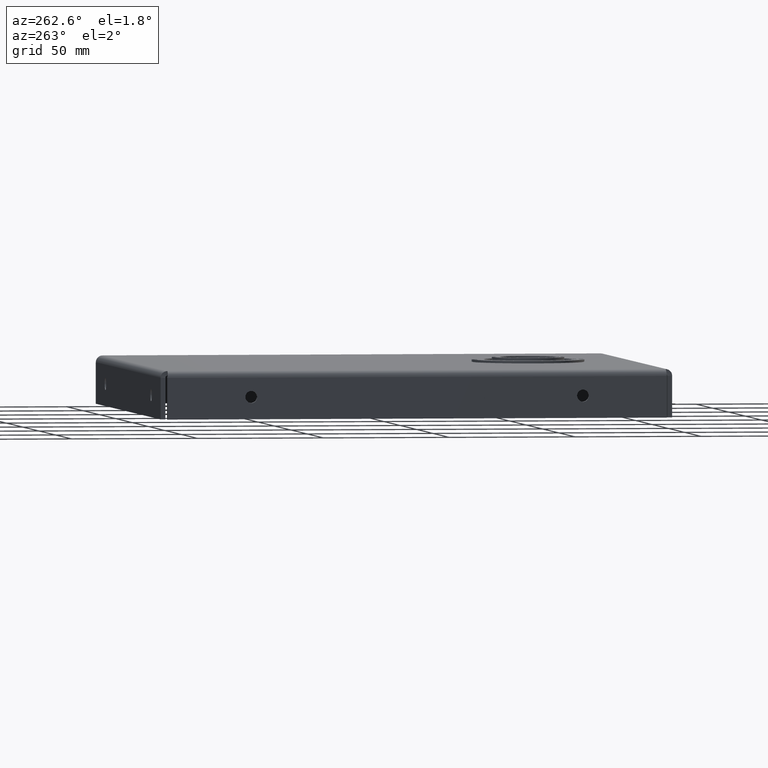
[diagram: clean part render]
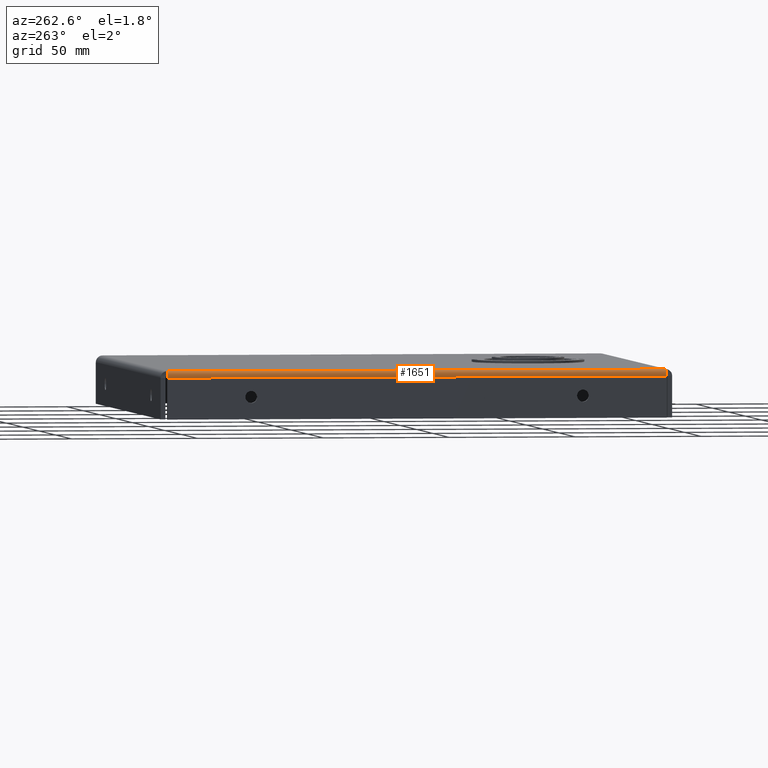
[diagram: same view with one face highlighted and labeled with its STEP entity id]
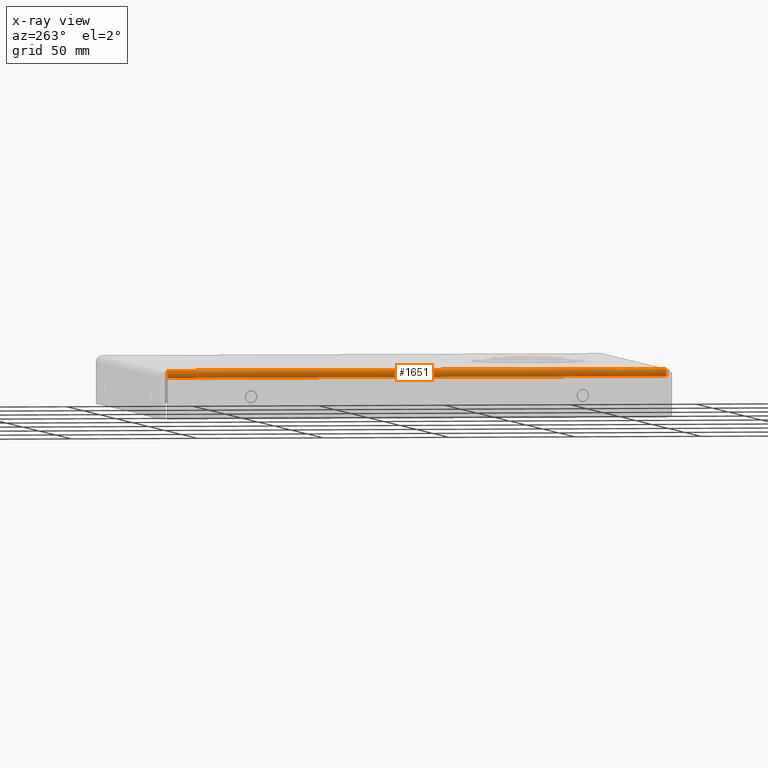
[diagram: x-ray of the same camera — body ghosted, the highlighted face saturated]
A machine part, auxiliary view. The second image highlights one B-rep face of the part: STEP entity #1651.
The next image is the same camera in x-ray: the body ghosted, the highlighted face saturated — about 0% of this face is hidden behind the body in this view.
In plain terms, the highlighted cylindrical surface (edge-blend (fillet) strip) has radius 2.6733 mm, axis along (0, -1, 0).
Its self-contained STEP definition (entity closure, byte-faithful):
#29=B_SPLINE_CURVE_WITH_KNOTS('',3,(#2577,#2578,#2579,#2580,#2581,#2582,
#2583),.UNSPECIFIED.,.F.,.F.,(4,3,4),(0.,0.897597901025654,1.57079632679489),
 .UNSPECIFIED.);
#30=B_SPLINE_CURVE_WITH_KNOTS('',3,(#2605,#2606,#2607,#2608,#2609,#2610,
#2611),.UNSPECIFIED.,.F.,.F.,(4,3,4),(0.,0.673198425769241,1.57079632679489),
 .UNSPECIFIED.);
#115=CYLINDRICAL_SURFACE('',#1769,0.10525);
#171=FACE_OUTER_BOUND('',#283,.T.);
#283=EDGE_LOOP('',(#1242,#1243,#1244,#1245));
#437=LINE('',#2537,#608);
#449=LINE('',#2621,#620);
#608=VECTOR('',#2000,7.80780582617584);
#620=VECTOR('',#2030,7.7895);
#767=VERTEX_POINT('',#2466);
#774=VERTEX_POINT('',#2535);
#775=VERTEX_POINT('',#2536);
#782=VERTEX_POINT('',#2576);
#939=EDGE_CURVE('',#774,#775,#437,.T.);
#950=EDGE_CURVE('',#782,#774,#29,.T.);
#952=EDGE_CURVE('',#775,#767,#30,.T.);
#957=EDGE_CURVE('',#767,#782,#449,.T.);
#1242=ORIENTED_EDGE('',*,*,#939,.F.);
#1243=ORIENTED_EDGE('',*,*,#950,.F.);
#1244=ORIENTED_EDGE('',*,*,#957,.F.);
#1245=ORIENTED_EDGE('',*,*,#952,.F.);
#1651=ADVANCED_FACE('',(#171),#115,.T.);
#1769=AXIS2_PLACEMENT_3D('',#2620,#2028,#2029);
#2000=DIRECTION('',(-1.73902928989991E-16,1.,-5.04177991450963E-33));
#2028=DIRECTION('center_axis',(1.74838271594513E-16,-1.,0.));
#2029=DIRECTION('ref_axis',(0.,0.,1.));
#2030=DIRECTION('',(1.7956302365442E-16,-1.,0.));
#2466=CARTESIAN_POINT('',(-3.89475,3.89475,0.074));
#2535=CARTESIAN_POINT('',(-4.,-3.90390291308792,-0.0312499999999995));
#2536=CARTESIAN_POINT('',(-4.,3.90390291308792,-0.0312499999999995));
#2537=CARTESIAN_POINT('',(-4.,5.67259492981161E-17,-0.0312499999999989));
#2576=CARTESIAN_POINT('',(-3.89475,-3.89475,0.074));
#2577=CARTESIAN_POINT('Ctrl Pts',(-3.89475,-3.89475,0.074));
#2578=CARTESIAN_POINT('Ctrl Pts',(-3.92624072636098,-3.89649341201675,0.074));
#2579=CARTESIAN_POINT('Ctrl Pts',(-3.95737896479609,-3.89823682403349,0.0588832058814389));
#2580=CARTESIAN_POINT('Ctrl Pts',(-3.97701530579973,-3.89998023605024,0.0343874155786176));
#2581=CARTESIAN_POINT('Ctrl Pts',(-3.99174256155247,-3.9012877950628,0.0160155728515016));
#2582=CARTESIAN_POINT('Ctrl Pts',(-4.,-3.90259535407536,-0.00763195522926074));
#2583=CARTESIAN_POINT('Ctrl Pts',(-4.,-3.90390291308792,-0.0312499999999982));
#2605=CARTESIAN_POINT('Ctrl Pts',(-4.,3.90390291308792,-0.0312499999999997));
#2606=CARTESIAN_POINT('Ctrl Pts',(-4.,3.90259535407536,-0.00763195522926199));
#2607=CARTESIAN_POINT('Ctrl Pts',(-3.99174256155247,3.9012877950628,0.0160155728515005));
#2608=CARTESIAN_POINT('Ctrl Pts',(-3.97701530579974,3.89998023605024,0.0343874155786169));
#2609=CARTESIAN_POINT('Ctrl Pts',(-3.95737896479609,3.89823682403349,0.0588832058814386));
#2610=CARTESIAN_POINT('Ctrl Pts',(-3.92624072636098,3.89649341201675,0.0740000000000004));
#2611=CARTESIAN_POINT('Ctrl Pts',(-3.89475,3.89475,0.074));
#2620=CARTESIAN_POINT('Origin',(-3.89475,0.,-0.0312500000000003));
#2621=CARTESIAN_POINT('',(-3.89475,1.947375,0.074));